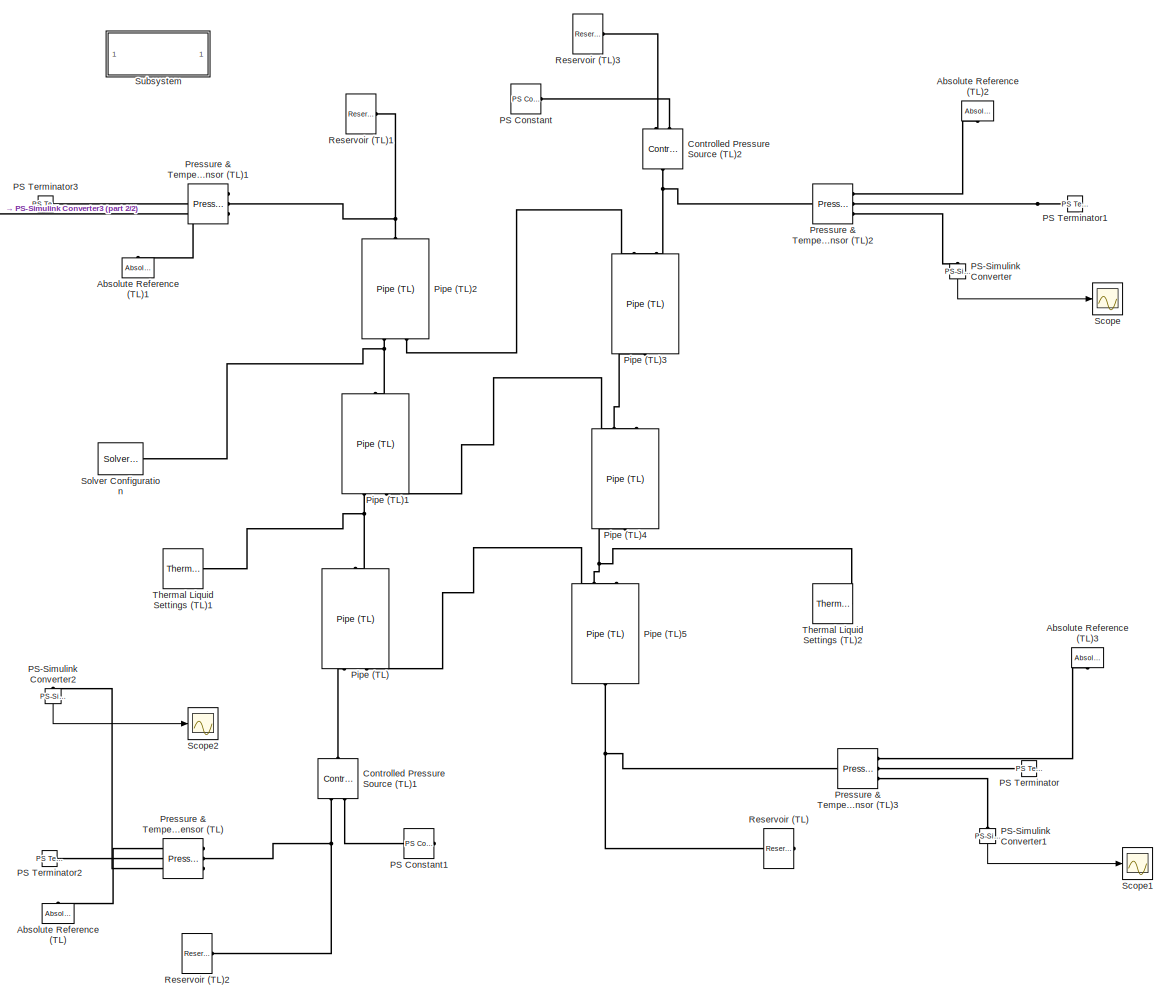
[diagram: root canvas - part 1/2, most of the canvas]
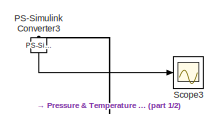
[diagram: root canvas - part 2/2, top left region]
MODEL slx_606f6d1a2982
KIND model
CONFIG AbsTol = 1e-3
CONFIG EnableMultiTasking = on
CONFIG FixedStep = auto
CONFIG MaxStep = auto
CONFIG MinStep = auto
CONFIG RelTol = 1e-3
CONFIG SampleTimeConstraint = Unconstrained
CONFIG Solver = VariableStepAuto
CONFIG SolverName = VariableStepAuto
CONFIG StartTime = 0.0
CONFIG StopTime = 10000
BLOCK [Reference] Absolute Reference (TL)  REF=fl_lib/Thermal Liquid/Elements/Absolute Reference
(TL)
  Ports = [0, 0, 0, 0, 0, 1]
  SourceBlock = fl_lib/Thermal Liquid/Elements/Absolute Reference\n(TL)
  SourceProductBaseCode = SS
  SourceProductName = Simscape
  SourceType = Absolute Reference\n(TL)
BLOCK [Reference] Absolute Reference (TL)1  REF=fl_lib/Thermal Liquid/Elements/Absolute Reference
(TL)
  Ports = [0, 0, 0, 0, 0, 1]
  SourceBlock = fl_lib/Thermal Liquid/Elements/Absolute Reference\n(TL)
  SourceProductBaseCode = SS
  SourceProductName = Simscape
  SourceType = Absolute Reference\n(TL)
BLOCK [Reference] Absolute Reference (TL)2  REF=fl_lib/Thermal Liquid/Elements/Absolute Reference
(TL)
  Ports = [0, 0, 0, 0, 0, 1]
  SourceBlock = fl_lib/Thermal Liquid/Elements/Absolute Reference\n(TL)
  SourceProductBaseCode = SS
  SourceProductName = Simscape
  SourceType = Absolute Reference\n(TL)
BLOCK [Reference] Absolute Reference (TL)3  REF=fl_lib/Thermal Liquid/Elements/Absolute Reference
(TL)
  Ports = [0, 0, 0, 0, 0, 1]
  SourceBlock = fl_lib/Thermal Liquid/Elements/Absolute Reference\n(TL)
  SourceProductBaseCode = SS
  SourceProductName = Simscape
  SourceType = Absolute Reference\n(TL)
BLOCK [Reference] Controlled Pressure Source (TL)1  REF=fl_lib/Thermal Liquid/Sources/Controlled Pressure
Source (TL)
  Ports = [0, 0, 0, 0, 0, 2, 1]
  SourceBlock = fl_lib/Thermal Liquid/Sources/Controlled Pressure\nSource (TL)
  SourceProductBaseCode = SS
  SourceProductName = Simscape
  SourceType = Controlled Pressure\nSource (TL)
BLOCK [Reference] Controlled Pressure Source (TL)2  REF=fl_lib/Thermal Liquid/Sources/Controlled Pressure
Source (TL)
  Ports = [0, 0, 0, 0, 0, 2, 1]
  SourceBlock = fl_lib/Thermal Liquid/Sources/Controlled Pressure\nSource (TL)
  SourceProductBaseCode = SS
  SourceProductName = Simscape
  SourceType = Controlled Pressure\nSource (TL)
BLOCK [Reference] PS Constant  REF=fl_lib/Physical Signals/Sources/PS Constant
  Ports = [0, 0, 0, 0, 0, 0, 1]
  SourceBlock = fl_lib/Physical Signals/Sources/PS Constant
  SourceProductBaseCode = SS
  SourceProductName = Simscape
  SourceType = PS Constant
BLOCK [Reference] PS Constant1  REF=fl_lib/Physical Signals/Sources/PS Constant
  Ports = [0, 0, 0, 0, 0, 0, 1]
  SourceBlock = fl_lib/Physical Signals/Sources/PS Constant
  SourceProductBaseCode = SS
  SourceProductName = Simscape
  SourceType = PS Constant
BLOCK [Reference] PS Terminator  REF=fl_lib/Physical Signals/Sinks/PS Terminator
  Ports = [0, 0, 0, 0, 0, 1]
  SourceBlock = fl_lib/Physical Signals/Sinks/PS Terminator
  SourceProductBaseCode = SS
  SourceProductName = Simscape
  SourceType = PS Terminator
BLOCK [Reference] PS Terminator1  REF=fl_lib/Physical Signals/Sinks/PS Terminator
  Ports = [0, 0, 0, 0, 0, 1]
  SourceBlock = fl_lib/Physical Signals/Sinks/PS Terminator
  SourceProductBaseCode = SS
  SourceProductName = Simscape
  SourceType = PS Terminator
BLOCK [Reference] PS Terminator2  REF=fl_lib/Physical Signals/Sinks/PS Terminator
  Ports = [0, 0, 0, 0, 0, 1]
  SourceBlock = fl_lib/Physical Signals/Sinks/PS Terminator
  SourceProductBaseCode = SS
  SourceProductName = Simscape
  SourceType = PS Terminator
BLOCK [Reference] PS Terminator3  REF=fl_lib/Physical Signals/Sinks/PS Terminator
  Ports = [0, 0, 0, 0, 0, 1]
  SourceBlock = fl_lib/Physical Signals/Sinks/PS Terminator
  SourceProductBaseCode = SS
  SourceProductName = Simscape
  SourceType = PS Terminator
BLOCK [Reference] PS-Simulink Converter  REF=nesl_utility/PS-Simulink
Converter
  Ports = [0, 1, 0, 0, 0, 1]
  SourceBlock = nesl_utility/PS-Simulink\nConverter
  SourceProductBaseCode = SS
  SourceProductName = Simscape
  SourceType = PS-Simulink\nConverter
BLOCK [Reference] PS-Simulink Converter1  REF=nesl_utility/PS-Simulink
Converter
  Ports = [0, 1, 0, 0, 0, 1]
  SourceBlock = nesl_utility/PS-Simulink\nConverter
  SourceProductBaseCode = SS
  SourceProductName = Simscape
  SourceType = PS-Simulink\nConverter
BLOCK [Reference] PS-Simulink Converter2  REF=nesl_utility/PS-Simulink
Converter
  Ports = [0, 1, 0, 0, 0, 1]
  SourceBlock = nesl_utility/PS-Simulink\nConverter
  SourceProductBaseCode = SS
  SourceProductName = Simscape
  SourceType = PS-Simulink\nConverter
BLOCK [Reference] PS-Simulink Converter3  REF=nesl_utility/PS-Simulink
Converter
  Ports = [0, 1, 0, 0, 0, 1]
  SourceBlock = nesl_utility/PS-Simulink\nConverter
  SourceProductBaseCode = SS
  SourceProductName = Simscape
  SourceType = PS-Simulink\nConverter
BLOCK [Reference] Pipe (TL)  REF=fl_lib/Thermal Liquid/Elements/Pipe (TL)
  Ports = [0, 0, 0, 0, 0, 2, 1]
  SourceBlock = fl_lib/Thermal Liquid/Elements/Pipe (TL)
  SourceProductBaseCode = SS
  SourceProductName = Simscape
  SourceType = Pipe (TL)
BLOCK [Reference] Pipe (TL)1  REF=fl_lib/Thermal Liquid/Elements/Pipe (TL)
  Ports = [0, 0, 0, 0, 0, 2, 1]
  SourceBlock = fl_lib/Thermal Liquid/Elements/Pipe (TL)
  SourceProductBaseCode = SS
  SourceProductName = Simscape
  SourceType = Pipe (TL)
BLOCK [Reference] Pipe (TL)2  REF=fl_lib/Thermal Liquid/Elements/Pipe (TL)
  Ports = [0, 0, 0, 0, 0, 2, 1]
  SourceBlock = fl_lib/Thermal Liquid/Elements/Pipe (TL)
  SourceProductBaseCode = SS
  SourceProductName = Simscape
  SourceType = Pipe (TL)
BLOCK [Reference] Pipe (TL)3  REF=fl_lib/Thermal Liquid/Elements/Pipe (TL)
  Ports = [0, 0, 0, 0, 0, 2, 1]
  SourceBlock = fl_lib/Thermal Liquid/Elements/Pipe (TL)
  SourceProductBaseCode = SS
  SourceProductName = Simscape
  SourceType = Pipe (TL)
BLOCK [Reference] Pipe (TL)4  REF=fl_lib/Thermal Liquid/Elements/Pipe (TL)
  Ports = [0, 0, 0, 0, 0, 2, 1]
  SourceBlock = fl_lib/Thermal Liquid/Elements/Pipe (TL)
  SourceProductBaseCode = SS
  SourceProductName = Simscape
  SourceType = Pipe (TL)
BLOCK [Reference] Pipe (TL)5  REF=fl_lib/Thermal Liquid/Elements/Pipe (TL)
  Ports = [0, 0, 0, 0, 0, 2, 1]
  SourceBlock = fl_lib/Thermal Liquid/Elements/Pipe (TL)
  SourceProductBaseCode = SS
  SourceProductName = Simscape
  SourceType = Pipe (TL)
BLOCK [Reference] Pressure & Temperature Sensor (TL)  REF=fl_lib/Thermal Liquid/Sensors/Pressure &
Temperature Sensor
(TL)
  Ports = [0, 0, 0, 0, 0, 1, 3]
  SourceBlock = fl_lib/Thermal Liquid/Sensors/Pressure &\nTemperature Sensor\n(TL)
  SourceProductBaseCode = SS
  SourceProductName = Simscape
  SourceType = Pressure &\nTemperature Sensor\n(TL)
BLOCK [Reference] Pressure & Temperature Sensor (TL)1  REF=fl_lib/Thermal Liquid/Sensors/Pressure &
Temperature Sensor
(TL)
  Ports = [0, 0, 0, 0, 0, 1, 3]
  SourceBlock = fl_lib/Thermal Liquid/Sensors/Pressure &\nTemperature Sensor\n(TL)
  SourceProductBaseCode = SS
  SourceProductName = Simscape
  SourceType = Pressure &\nTemperature Sensor\n(TL)
BLOCK [Reference] Pressure & Temperature Sensor (TL)2  REF=fl_lib/Thermal Liquid/Sensors/Pressure &
Temperature Sensor
(TL)
  Ports = [0, 0, 0, 0, 0, 1, 3]
  SourceBlock = fl_lib/Thermal Liquid/Sensors/Pressure &\nTemperature Sensor\n(TL)
  SourceProductBaseCode = SS
  SourceProductName = Simscape
  SourceType = Pressure &\nTemperature Sensor\n(TL)
BLOCK [Reference] Pressure & Temperature Sensor (TL)3  REF=fl_lib/Thermal Liquid/Sensors/Pressure &
Temperature Sensor
(TL)
  Ports = [0, 0, 0, 0, 0, 1, 3]
  SourceBlock = fl_lib/Thermal Liquid/Sensors/Pressure &\nTemperature Sensor\n(TL)
  SourceProductBaseCode = SS
  SourceProductName = Simscape
  SourceType = Pressure &\nTemperature Sensor\n(TL)
BLOCK [Reference] Reservoir (TL)  REF=fl_lib/Thermal Liquid/Elements/Reservoir (TL)
  Ports = [0, 0, 0, 0, 0, 1]
  SourceBlock = fl_lib/Thermal Liquid/Elements/Reservoir (TL)
  SourceProductBaseCode = SS
  SourceProductName = Simscape
  SourceType = Reservoir (TL)
BLOCK [Reference] Reservoir (TL)1  REF=fl_lib/Thermal Liquid/Elements/Reservoir (TL)
  Ports = [0, 0, 0, 0, 0, 1]
  SourceBlock = fl_lib/Thermal Liquid/Elements/Reservoir (TL)
  SourceProductBaseCode = SS
  SourceProductName = Simscape
  SourceType = Reservoir (TL)
BLOCK [Reference] Reservoir (TL)2  REF=fl_lib/Thermal Liquid/Elements/Reservoir (TL)
  Ports = [0, 0, 0, 0, 0, 1]
  SourceBlock = fl_lib/Thermal Liquid/Elements/Reservoir (TL)
  SourceProductBaseCode = SS
  SourceProductName = Simscape
  SourceType = Reservoir (TL)
BLOCK [Reference] Reservoir (TL)3  REF=fl_lib/Thermal Liquid/Elements/Reservoir (TL)
  Ports = [0, 0, 0, 0, 0, 1]
  SourceBlock = fl_lib/Thermal Liquid/Elements/Reservoir (TL)
  SourceProductBaseCode = SS
  SourceProductName = Simscape
  SourceType = Reservoir (TL)
BLOCK [Scope] Scope
  Floating = off
  NumInputPorts = 1
  Ports = [1]
  ScopeSpecificationString = Simulink.scopes.TimeScopeBlockCfg('CurrentConfiguration', extmgr.ConfigurationSet(extmgr.Configuration('Core','General UI',true),extmgr.Configuration('Core','Source UI',true),extmgr.Configuration('Sources','WiredSimulink',true),extmgr.Configuration('Visuals','Time Domain',true),extmgr.Configuration('Tools','Plot Navigation',true),extmgr.Configuration('Tools','Measurements',true)),'Version','2018b'...<+1ch>
BLOCK [Scope] Scope1
  Floating = off
  NumInputPorts = 1
  Ports = [1]
  ScopeSpecificationString = Simulink.scopes.TimeScopeBlockCfg('CurrentConfiguration', extmgr.ConfigurationSet(extmgr.Configuration('Core','General UI',true),extmgr.Configuration('Core','Source UI',true),extmgr.Configuration('Sources','WiredSimulink',true,'DataLoggingVariableName','ScopeData1'),extmgr.Configuration('Visuals','Time Domain',true,'SerializedDisplays',{struct('MinYLimReal','299.9999999999986','MaxYLimReal','300.0...<+1459ch>
BLOCK [Scope] Scope2
  Floating = off
  NumInputPorts = 1
  Ports = [1]
  ScopeSpecificationString = Simulink.scopes.TimeScopeBlockCfg('CurrentConfiguration', extmgr.ConfigurationSet(extmgr.Configuration('Core','General UI',true),extmgr.Configuration('Core','Source UI',true),extmgr.Configuration('Sources','WiredSimulink',true,'DataLoggingVariableName','ScopeData2'),extmgr.Configuration('Visuals','Time Domain',true),extmgr.Configuration('Tools','Plot Navigation',true),extmgr.Configuration('Tools',...<+40ch>
BLOCK [Scope] Scope3
  Floating = off
  NumInputPorts = 1
  Ports = [1]
  ScopeSpecificationString = Simulink.scopes.TimeScopeBlockCfg('CurrentConfiguration', extmgr.ConfigurationSet(extmgr.Configuration('Core','General UI',true),extmgr.Configuration('Core','Source UI',true),extmgr.Configuration('Sources','WiredSimulink',true,'DataLoggingVariableName','ScopeData3'),extmgr.Configuration('Visuals','Time Domain',true),extmgr.Configuration('Tools','Plot Navigation',true),extmgr.Configuration('Tools',...<+40ch>
BLOCK [Reference] Solver Configuration  REF=nesl_utility/Solver
Configuration
  Ports = [0, 0, 0, 0, 0, 0, 1]
  SourceBlock = nesl_utility/Solver\nConfiguration
  SourceProductBaseCode = SS
  SourceProductName = Simscape
  SourceType = Solver\nConfiguration
BLOCK [SubSystem] Subsystem
  OpenFcn = open_system('simscape')
  Ports = []
  RequestExecContextInheritance = off
  ShowPortLabels = none
BLOCK [Reference] Thermal Liquid Settings (TL)1  REF=fl_lib/Thermal Liquid/Utilities/Thermal Liquid
Settings (TL)
  Ports = [0, 0, 0, 0, 0, 0, 1]
  SourceBlock = fl_lib/Thermal Liquid/Utilities/Thermal Liquid\nSettings (TL)
  SourceProductBaseCode = SS
  SourceProductName = Simscape
  SourceType = Thermal Liquid\nSettings (TL)
BLOCK [Reference] Thermal Liquid Settings (TL)2  REF=fl_lib/Thermal Liquid/Utilities/Thermal Liquid
Settings (TL)
  Ports = [0, 0, 0, 0, 0, 0, 1]
  SourceBlock = fl_lib/Thermal Liquid/Utilities/Thermal Liquid\nSettings (TL)
  SourceProductBaseCode = SS
  SourceProductName = Simscape
  SourceType = Thermal Liquid\nSettings (TL)
LINE PS-Simulink Converter1:1 -> Scope1:1
LINE PS-Simulink Converter2:1 -> Scope2:1
LINE PS-Simulink Converter3:1 -> Scope3:1
LINE PS-Simulink Converter:1 -> Scope:1
PLINE Absolute Reference (TL)1:LConn1 -- Pressure & Temperature Sensor (TL)1:RConn1
PLINE Absolute Reference (TL)2:LConn1 -- Pressure & Temperature Sensor (TL)2:RConn1
PLINE Absolute Reference (TL)3:LConn1 -- Pressure & Temperature Sensor (TL)3:RConn1
PLINE Absolute Reference (TL):LConn1 -- Pressure & Temperature Sensor (TL):RConn1
PNET net1: Controlled Pressure Source (TL)1:LConn1 -- Pressure & Temperature Sensor (TL):LConn1 -- Reservoir (TL)2:LConn1
PLINE Controlled Pressure Source (TL)1:LConn2 -- PS Constant1:RConn1
PLINE Controlled Pressure Source (TL)1:RConn1 -- Pipe (TL):LConn1
PLINE Controlled Pressure Source (TL)2:LConn1 -- Reservoir (TL)3:LConn1
PLINE Controlled Pressure Source (TL)2:LConn2 -- PS Constant:RConn1
PNET net2: Controlled Pressure Source (TL)2:RConn1 -- Pipe (TL)3:LConn1 -- Pressure & Temperature Sensor (TL)2:LConn1
PLINE PS Terminator1:LConn1 -- Pressure & Temperature Sensor (TL)2:RConn2
PLINE PS Terminator2:LConn1 -- Pressure & Temperature Sensor (TL):RConn2
PLINE PS Terminator3:LConn1 -- Pressure & Temperature Sensor (TL)1:RConn2
PLINE PS Terminator:LConn1 -- Pressure & Temperature Sensor (TL)3:RConn2
PLINE PS-Simulink Converter1:LConn1 -- Pressure & Temperature Sensor (TL)3:RConn3
PLINE PS-Simulink Converter2:LConn1 -- Pressure & Temperature Sensor (TL):RConn3
PLINE PS-Simulink Converter3:LConn1 -- Pressure & Temperature Sensor (TL)1:RConn3
PLINE PS-Simulink Converter:LConn1 -- Pressure & Temperature Sensor (TL)2:RConn3
PNET net3: Pipe (TL)1:LConn1 -- Pipe (TL):RConn1 -- Thermal Liquid Settings (TL)1:RConn1
PLINE Pipe (TL)1:LConn2 -- Pipe (TL)4:LConn2
PNET net4: Pipe (TL)1:RConn1 -- Pipe (TL)2:LConn1 -- Solver Configuration:RConn1
PLINE Pipe (TL)2:LConn2 -- Pipe (TL)3:LConn2
PNET net5: Pipe (TL)2:RConn1 -- Pressure & Temperature Sensor (TL)1:LConn1 -- Reservoir (TL)1:LConn1
PLINE Pipe (TL)3:RConn1 -- Pipe (TL)4:LConn1
PNET net6: Pipe (TL)4:RConn1 -- Pipe (TL)5:LConn1 -- Thermal Liquid Settings (TL)2:RConn1
PLINE Pipe (TL)5:LConn2 -- Pipe (TL):LConn2
PNET net7: Pipe (TL)5:RConn1 -- Pressure & Temperature Sensor (TL)3:LConn1 -- Reservoir (TL):LConn1
note: PNET lines group multi-terminal physical nets as a canonical sorted terminal list (undirected conserving connections); 2-terminal nets keep the pairwise PLINE form
